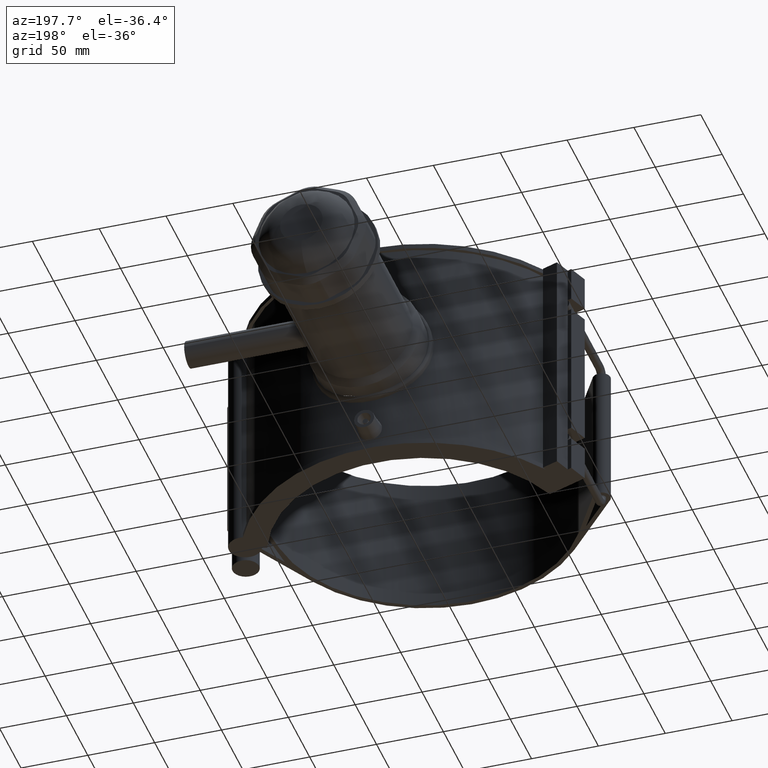
[diagram: clean part render]
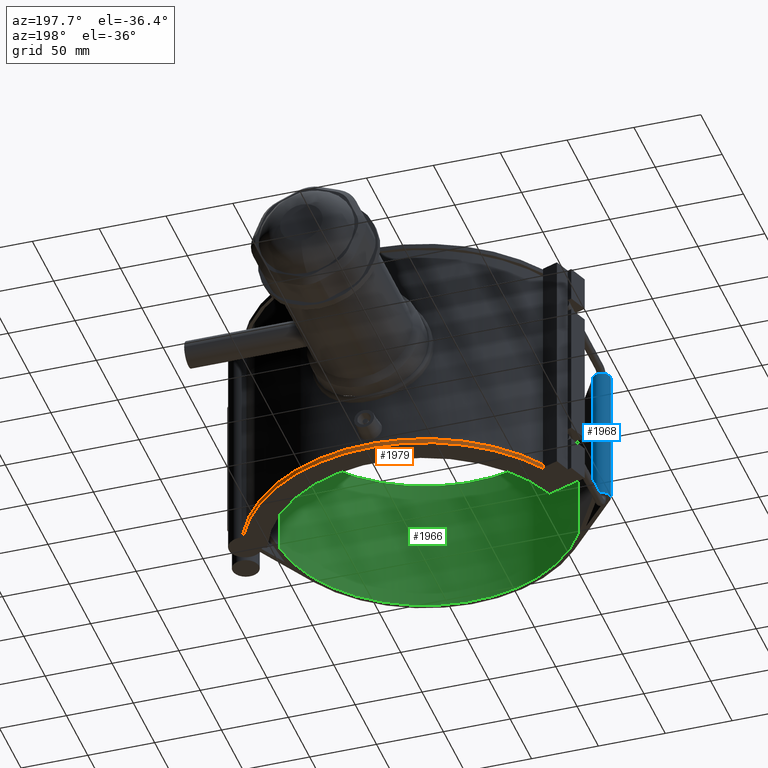
[diagram: same view with three faces highlighted in distinct colors, each labeled with its STEP entity id]
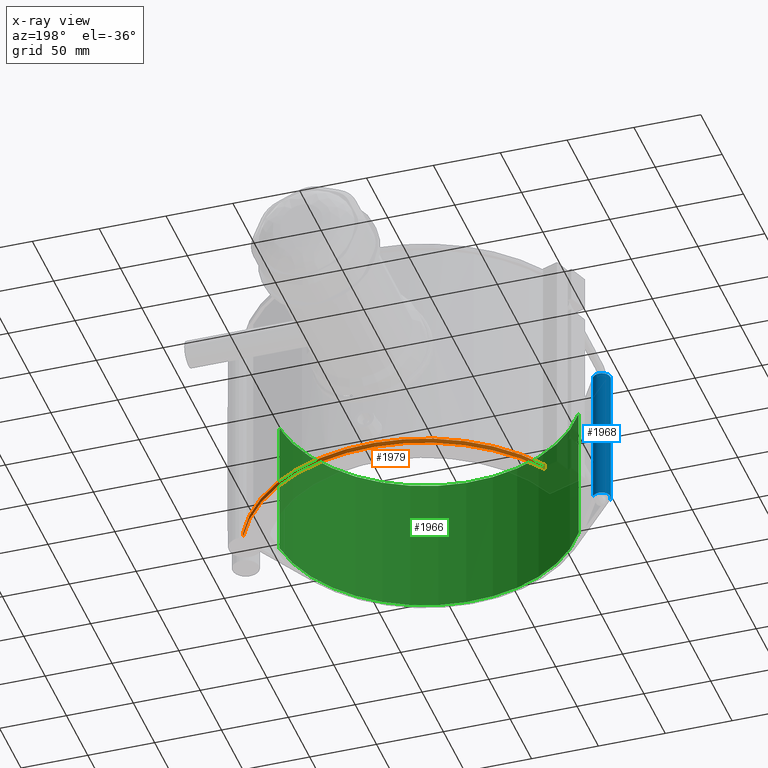
[diagram: x-ray of the same camera — body ghosted, the three highlighted faces saturated]
A machine part, auxiliary view with three faces highlighted in distinct colors.
The next image is the same camera in x-ray (body ghosted, the three faces saturated) — at least one of them is partly hidden behind the body in this view.
Their STEP definitions:

[orange] entity #1979 — the highlighted cylindrical surface (partial cylindrical patch) has radius 130.815 mm, axis along (0, 0, -1).
#167=LINE('',#3492,#328);
#196=LINE('',#3567,#357);
#328=VECTOR('',#2626,3.52);
#357=VECTOR('',#2717,3.52);
#446=CYLINDRICAL_SURFACE('',#2182,130.815);
#558=FACE_OUTER_BOUND('',#707,.T.);
#707=EDGE_LOOP('',(#1769,#1770,#1771,#1772));
#796=CIRCLE('',#2149,130.815);
#807=CIRCLE('',#2183,130.815);
#962=VERTEX_POINT('',#3489);
#963=VERTEX_POINT('',#3491);
#973=VERTEX_POINT('',#3524);
#978=VERTEX_POINT('',#3566);
#1203=EDGE_CURVE('',#963,#962,#167,.T.);
#1220=EDGE_CURVE('',#973,#963,#796,.T.);
#1240=EDGE_CURVE('',#978,#973,#196,.T.);
#1254=EDGE_CURVE('',#962,#978,#807,.T.);
#1769=ORIENTED_EDGE('',*,*,#1203,.T.);
#1770=ORIENTED_EDGE('',*,*,#1254,.T.);
#1771=ORIENTED_EDGE('',*,*,#1240,.T.);
#1772=ORIENTED_EDGE('',*,*,#1220,.T.);
#1979=ADVANCED_FACE('',(#558),#446,.T.);
#2149=AXIS2_PLACEMENT_3D('',#3525,#2658,#2659);
#2182=AXIS2_PLACEMENT_3D('',#3855,#2743,#2744);
#2183=AXIS2_PLACEMENT_3D('',#3856,#2745,#2746);
#2626=DIRECTION('',(0.,0.,1.));
#2658=DIRECTION('center_axis',(0.,0.,1.));
#2659=DIRECTION('ref_axis',(0.976614427290077,0.21499828001376,0.));
#2717=DIRECTION('',(0.,0.,-1.));
#2743=DIRECTION('center_axis',(0.,0.,-1.));
#2744=DIRECTION('ref_axis',(0.976614427290077,0.21499828001376,0.));
#2745=DIRECTION('center_axis',(0.,0.,-1.));
#2746=DIRECTION('ref_axis',(0.976614427290077,0.21499828001376,0.));
#3489=CARTESIAN_POINT('',(-111.699006971418,68.0874148914405,-84.48));
#3491=CARTESIAN_POINT('',(-111.699006971418,68.0874148914405,-88.));
#3492=CARTESIAN_POINT('',(-111.699006971418,68.0874148914405,-88.));
#3524=CARTESIAN_POINT('',(118.326455748415,55.7800510489045,-88.));
#3525=CARTESIAN_POINT('Origin',(0.,0.,-88.));
#3566=CARTESIAN_POINT('',(118.326455748415,55.7800510489044,-84.48));
#3567=CARTESIAN_POINT('',(118.326455748415,55.7800510489045,0.));
#3855=CARTESIAN_POINT('Origin',(0.,0.,-88.));
#3856=CARTESIAN_POINT('Origin',(0.,0.,-84.48));

[blue] entity #1968 — the highlighted cylindrical surface (edge-blend (fillet) strip) has radius 6.525 mm, axis along (0, 0, 1).
#192=LINE('',#3550,#353);
#193=LINE('',#3552,#354);
#353=VECTOR('',#2693,105.6);
#354=VECTOR('',#2696,105.6);
#440=CYLINDRICAL_SURFACE('',#2164,6.525);
#547=FACE_OUTER_BOUND('',#689,.T.);
#689=EDGE_LOOP('',(#1719,#1720,#1721,#1722));
#770=CIRCLE('',#2083,6.525);
#776=CIRCLE('',#2090,6.525);
#893=VERTEX_POINT('',#3288);
#894=VERTEX_POINT('',#3290);
#904=VERTEX_POINT('',#3312);
#905=VERTEX_POINT('',#3314);
#1107=EDGE_CURVE('',#893,#894,#770,.T.);
#1119=EDGE_CURVE('',#904,#905,#776,.T.);
#1234=EDGE_CURVE('',#893,#905,#192,.T.);
#1235=EDGE_CURVE('',#894,#904,#193,.T.);
#1719=ORIENTED_EDGE('',*,*,#1234,.T.);
#1720=ORIENTED_EDGE('',*,*,#1119,.F.);
#1721=ORIENTED_EDGE('',*,*,#1235,.F.);
#1722=ORIENTED_EDGE('',*,*,#1107,.F.);
#1968=ADVANCED_FACE('',(#547),#440,.T.);
#2083=AXIS2_PLACEMENT_3D('',#3291,#2449,#2450);
#2090=AXIS2_PLACEMENT_3D('',#3315,#2469,#2470);
#2164=AXIS2_PLACEMENT_3D('',#3556,#2702,#2703);
#2449=DIRECTION('center_axis',(0.,0.,-1.));
#2450=DIRECTION('ref_axis',(-1.,0.,0.));
#2469=DIRECTION('center_axis',(0.,0.,1.));
#2470=DIRECTION('ref_axis',(-1.,0.,0.));
#2693=DIRECTION('',(0.,0.,1.));
#2696=DIRECTION('',(0.,0.,1.));
#2702=DIRECTION('center_axis',(0.,0.,1.));
#2703=DIRECTION('ref_axis',(-1.,0.,0.));
#3288=CARTESIAN_POINT('',(-130.056822313878,-26.7688022069422,-52.8));
#3290=CARTESIAN_POINT('',(-119.515049397827,-19.1625942766905,-52.8));
#3291=CARTESIAN_POINT('Origin',(-125.121951219512,-22.5,-52.8));
#3312=CARTESIAN_POINT('',(-119.515049397827,-19.1625942766905,52.8));
#3314=CARTESIAN_POINT('',(-130.056822313878,-26.7688022069422,52.8));
#3315=CARTESIAN_POINT('Origin',(-125.121951219512,-22.5,52.8));
#3550=CARTESIAN_POINT('',(-130.056822313878,-26.7688022069422,0.));
#3552=CARTESIAN_POINT('',(-119.515049397827,-19.1625942766905,0.));
#3556=CARTESIAN_POINT('Origin',(-125.121951219512,-22.5,0.));

[green] entity #1966 — the highlighted cylindrical surface (partial cylindrical patch) has radius 112.5 mm, axis along (0, 0, 1).
#187=LINE('',#3541,#348);
#194=LINE('',#3553,#355);
#348=VECTOR('',#2680,105.6);
#355=VECTOR('',#2697,105.6);
#438=CYLINDRICAL_SURFACE('',#2162,112.5);
#545=FACE_OUTER_BOUND('',#687,.T.);
#687=EDGE_LOOP('',(#1711,#1712,#1713,#1714));
#771=CIRCLE('',#2084,112.5);
#775=CIRCLE('',#2089,112.5);
#895=VERTEX_POINT('',#3292);
#896=VERTEX_POINT('',#3294);
#902=VERTEX_POINT('',#3308);
#903=VERTEX_POINT('',#3310);
#1109=EDGE_CURVE('',#895,#896,#771,.T.);
#1117=EDGE_CURVE('',#902,#903,#775,.T.);
#1229=EDGE_CURVE('',#896,#902,#187,.T.);
#1236=EDGE_CURVE('',#895,#903,#194,.T.);
#1711=ORIENTED_EDGE('',*,*,#1236,.T.);
#1712=ORIENTED_EDGE('',*,*,#1117,.F.);
#1713=ORIENTED_EDGE('',*,*,#1229,.F.);
#1714=ORIENTED_EDGE('',*,*,#1109,.F.);
#1966=ADVANCED_FACE('',(#545),#438,.F.);
#2084=AXIS2_PLACEMENT_3D('',#3295,#2452,#2453);
#2089=AXIS2_PLACEMENT_3D('',#3311,#2466,#2467);
#2162=AXIS2_PLACEMENT_3D('',#3554,#2698,#2699);
#2452=DIRECTION('center_axis',(0.,0.,1.));
#2453=DIRECTION('ref_axis',(0.859295298342616,0.511479804338621,0.));
#2466=DIRECTION('center_axis',(0.,0.,-1.));
#2467=DIRECTION('ref_axis',(0.859295298342616,0.511479804338621,0.));
#2680=DIRECTION('',(0.,0.,1.));
#2697=DIRECTION('',(0.,0.,1.));
#2698=DIRECTION('center_axis',(0.,0.,1.));
#2699=DIRECTION('ref_axis',(0.859295298342616,0.511479804338621,0.));
#3292=CARTESIAN_POINT('',(-96.6707210635443,-57.5414779880949,-52.8));
#3294=CARTESIAN_POINT('',(112.037457780988,-10.1910771743344,-52.8));
#3295=CARTESIAN_POINT('Origin',(0.,0.,-52.8));
#3308=CARTESIAN_POINT('',(112.037457780988,-10.1910771743344,52.8));
#3310=CARTESIAN_POINT('',(-96.6707210635443,-57.5414779880949,52.8));
#3311=CARTESIAN_POINT('Origin',(0.,0.,52.8));
#3541=CARTESIAN_POINT('',(112.037457780988,-10.1910771743344,0.));
#3553=CARTESIAN_POINT('',(-96.6707210635443,-57.5414779880949,0.));
#3554=CARTESIAN_POINT('Origin',(0.,0.,0.));